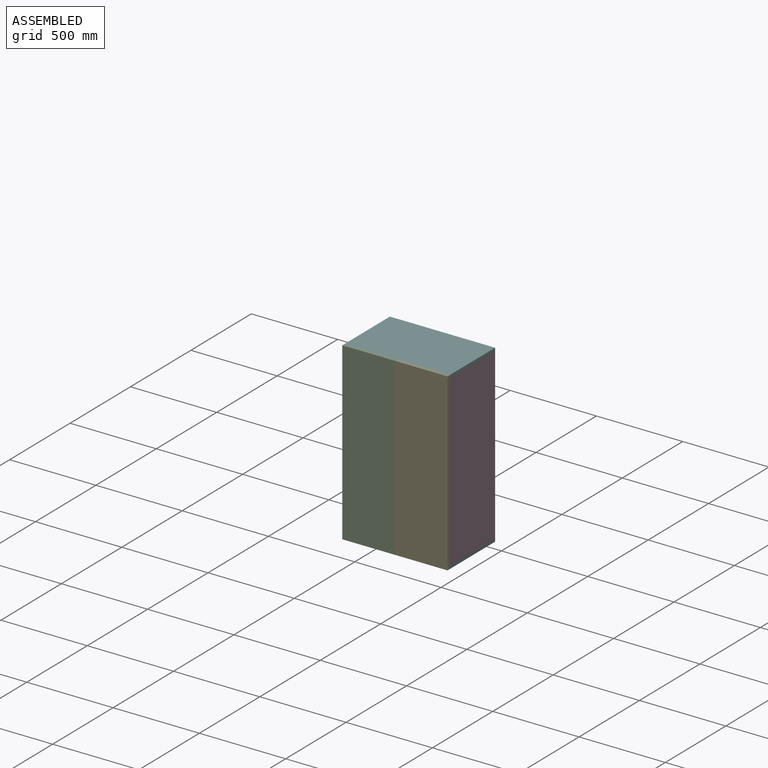
[diagram: assembled view]
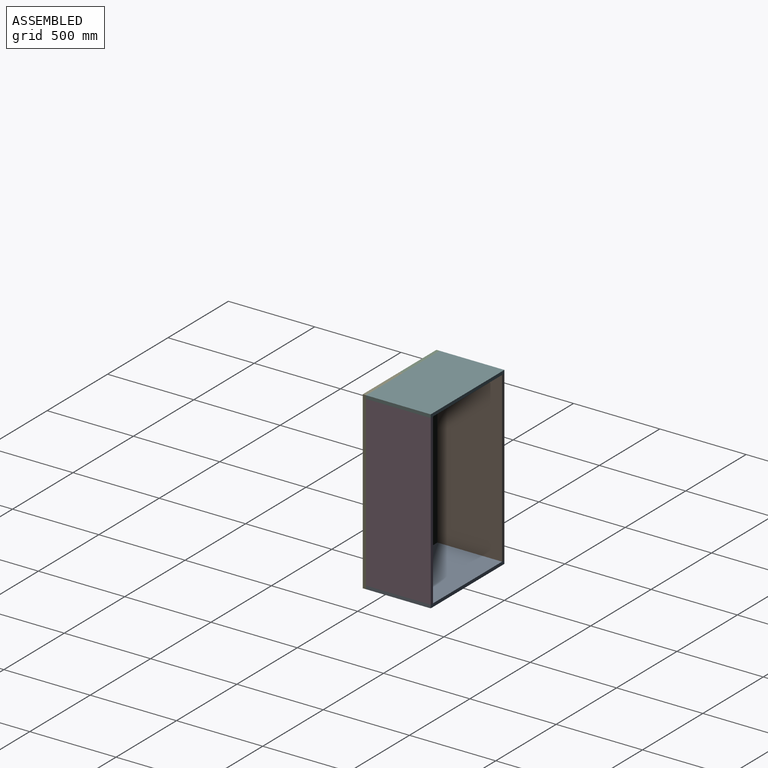
[diagram: assembled view, second angle]
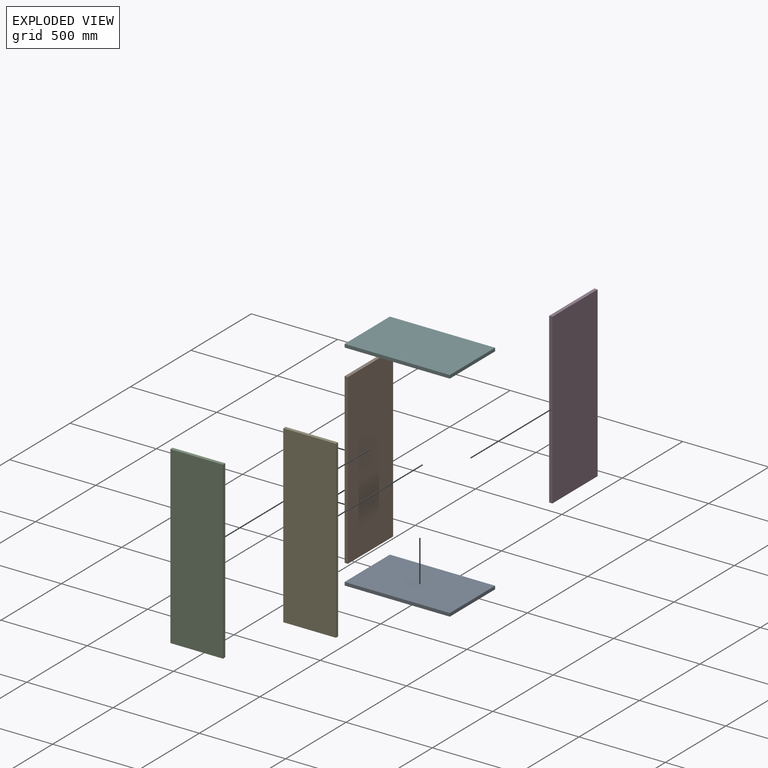
[diagram: exploded view]
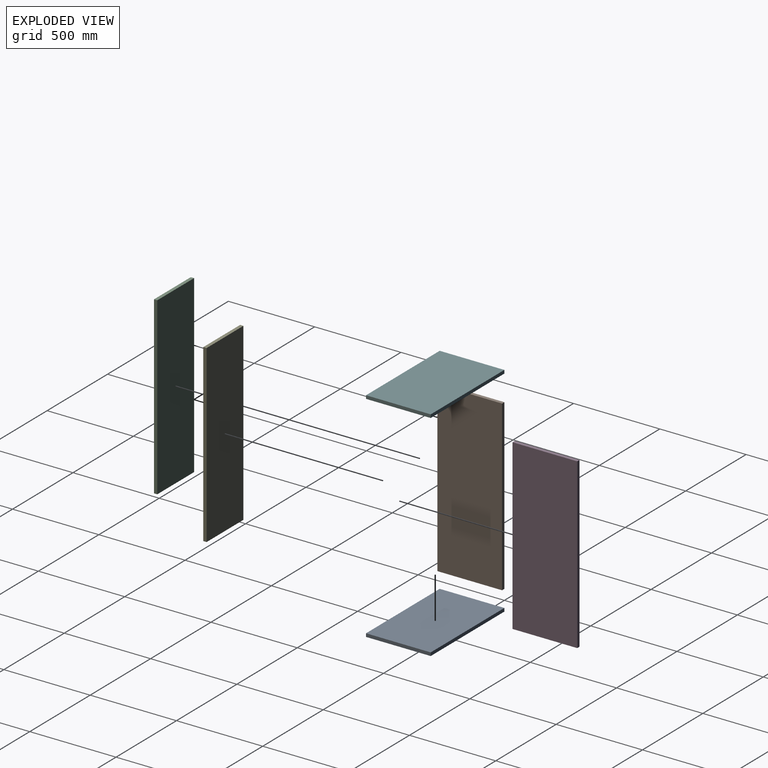
[diagram: exploded view, second angle]
ASSEMBLY  parts=6 mates=5
PART A: 6 faces, bbox 609.6x374.7x19.1 mm
  f0: plane 374.65x19.05mm, normal (1,0,0), area 7137.1mm2, adj f1,f3,f4,f5
  f1: plane 609.6x19.05mm, normal (0,1,0), area 11612.9mm2, adj f0,f2,f4,f5
  f2: plane 374.65x19.05mm, normal (-1,0,0), area 7137.1mm2, adj f1,f3,f4,f5
  f3: plane 609.6x19.05mm, normal (0,-1,0), area 11612.9mm2, adj f0,f2,f4,f5
  f4: plane 609.6x374.65mm, normal (0,0,1), area 228386.6mm2, adj f0,f1,f2,f3
  f5: plane 609.6x374.65mm, normal (0,0,-1), area 228386.6mm2, adj f0,f1,f2,f3
PART B: 6 faces, bbox 19.1x374.7x977.9 mm
  f0: plane 374.65x19.05mm, normal (0,0,1), area 7137.1mm2, adj f1,f3,f4,f5
  f1: plane 977.9x19.05mm, normal (0,-1,0), area 18629mm2, adj f0,f2,f4,f5
  f2: plane 374.65x19.05mm, normal (0,0,-1), area 7137.1mm2, adj f1,f3,f4,f5
  f3: plane 977.9x19.05mm, normal (0,1,0), area 18629mm2, adj f0,f2,f4,f5
  f4: plane 977.9x374.65mm, normal (1,0,0), area 366370.2mm2, adj f0,f1,f2,f3
  f5: plane 977.9x374.65mm, normal (-1,0,0), area 366370.2mm2, adj f0,f1,f2,f3
PART C: 6 faces, bbox 304.8x19.1x1016 mm
  f0: plane 304.8x19.05mm, normal (0,0,1), area 5806.4mm2, adj f1,f3,f4,f5
  f1: plane 1016x19.05mm, normal (-1,0,0), area 19354.8mm2, adj f0,f2,f4,f5
  f2: plane 304.8x19.05mm, normal (0,0,-1), area 5806.4mm2, adj f1,f3,f4,f5
  f3: plane 1016x19.05mm, normal (1,0,0), area 19354.8mm2, adj f0,f2,f4,f5
  f4: plane 1016x304.8mm, normal (0,-1,0), area 309676.8mm2, adj f0,f1,f2,f3
  f5: plane 1016x304.8mm, normal (0,1,0), area 309676.8mm2, adj f0,f1,f2,f3
PART D: same geometry as B
PART E: same geometry as C
PART F: same geometry as A
PLACE A t=(-558.51,-91.64,-482.23)mm
PLACE B t=(-863.31,-91.64,25.77)mm
PLACE C t=(-710.91,-278.97,25.77)mm
PLACE D t=(-272.76,-91.64,25.77)mm
PLACE E t=(-406.11,-278.97,25.77)mm
PLACE F t=(-558.51,-91.64,514.72)mm
MATE fastened B.f0 <-> F.f5  axis (0,0,1) through (-863.31,-91.64,514.72)mm
MATE fastened B.f1 <-> C.f5  axis (0,-1,0) through (-863.31,-278.97,25.77)mm
MATE fastened B.f2 <-> A.f4  axis (0,0,-1) through (-863.31,-91.64,-463.18)mm
MATE fastened D.f1 <-> E.f5  axis (0,-1,0) through (-253.71,-278.97,25.77)mm
MATE fastened F.f5 <-> D.f0  axis (0,0,-1) through (-253.71,-91.64,514.72)mm
